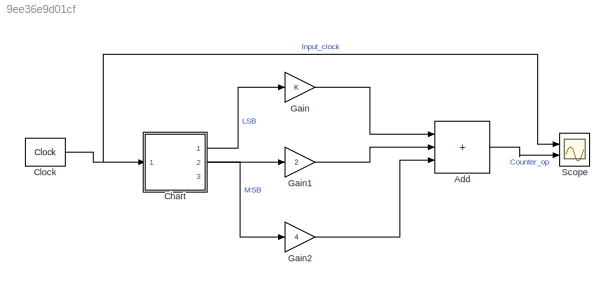
MODEL slx_9ee36e9d01cf
KIND model
CONFIG AbsTol = auto
CONFIG EnableMultiTasking = off
CONFIG FixedStep = auto
CONFIG MaxStep = auto
CONFIG MinStep = auto
CONFIG RelTol = 1e-3
CONFIG SampleTimeConstraint = Unconstrained
CONFIG SolverName = VariableStepAuto
CONFIG StartTime = 0.0
CONFIG StopTime = 24.0
BLOCK [Sum] Add
  IconShape = rectangular
  Inputs = +++
  Ports = [3, 1]
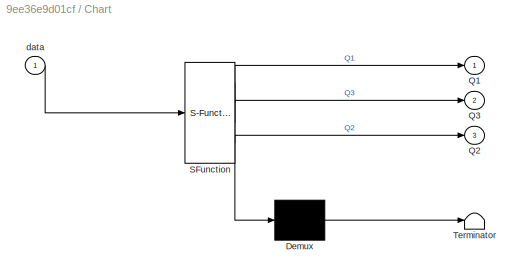
BLOCK [SubSystem] Chart
  ErrorFcn = Stateflow.Translate.translate
  PermitHierarchicalResolution = ExplicitOnly
  PortSchema = {"entries":[{"content":{"sides":[{"content":{"connectorIds":["In1"]},"type":"ConnectorPlacement.EquallySpacedRectSide","uuid":"e3896581-da58-46d2-adac-082a32a1a2e6"},{"content":{"connectorIds":["Out1","Out3","Out2"],"side":"RIGHT"},"type":"ConnectorPlacement.EquallySpacedRectSide","uuid":"2bb7c66e-b19f-4314-acbc-f883db68d0cd"},{"content":{"connectorIds":[],"side":"TOP"},"type":"ConnectorPlacement....<+398ch>
  Ports = [1, 3]
  RequestExecContextInheritance = off
  SFBlockType = Chart
  TreatAsAtomicUnit = on
BLOCK [Demux] Chart/ Demux 
  Outputs = 1
  Ports = [1, 1]
BLOCK [S-Function] Chart/ SFunction 
  EnableBusSupport = on
  FunctionName = sf_sfun
  PortCounts = [1 4]
  Ports = [1, 4]
  SFcnIsStateOwnerBlock = off
  SFunctionDeploymentMode = off
  Tag = Stateflow S-Function 3
BLOCK [Terminator] Chart/ Terminator 
BLOCK [Outport] Chart/Q1
BLOCK [Outport] Chart/Q2
  Port = 3
BLOCK [Outport] Chart/Q3
  Port = 2
BLOCK [Inport] Chart/data
BLOCK [Reference] Clock  REF=simulink_extras/Flip Flops/Clock
  Ports = [0, 1]
  SourceBlock = simulink_extras/Flip Flops/Clock
  SourceProductBaseCode = SL
  SourceType = Digital clock
BLOCK [Gain] Gain
BLOCK [Gain] Gain1
  Gain = 2
BLOCK [Gain] Gain2
  Gain = 4
BLOCK [Scope] Scope
  Floating = off
  NumInputPorts = 2
  Ports = [2]
  ScopeSpecificationString = Simulink.scopes.TimeScopeBlockCfg('CurrentConfiguration', extmgr.ConfigurationSet(extmgr.Configuration('Core','General UI',true),extmgr.Configuration('Core','Source UI',true),extmgr.Configuration('Sources','WiredSimulink',true),extmgr.Configuration('Visuals','Time Domain',true,'SerializedDisplays',{struct('MinYLimReal','-0.125','MaxYLimReal','1.125','YLabelReal','','MinYLimMag','0.00000','MaxYLimM...<+1992ch>
LINE Add:1 -> Scope:2
LINE Chart:1 -> Gain:1
LINE Chart:2 -> Gain2:1
LINE Chart:3 -> Gain1:1
NET Clock:1 -> Chart:1, Scope:1
LINE Gain1:1 -> Add:2
LINE Gain2:1 -> Add:3
LINE Gain:1 -> Add:1
note: NET lines group one-source signal fan-out (src -> all destinations, sorted); 1:1 wires keep LINE
CHART Chart states=12 transitions=13
  STATE_LABEL 'state_0000\nentry:\nQ1=0;\nQ2=0;\nQ3=0;'
  STATE_LABEL 'case_0101\nentry:\nQ1=1;\nQ2=0;\nQ3=1;'
  STATE_LABEL 'case_0000\nentry:\nQ1=0;\nQ2=0;\nQ3=0;'
  STATE_LABEL 'state_0101\nentry:\nQ1=1;\nQ2=0;\nQ3=1;'
  STATE_LABEL 'state_0001\nentry:\nQ1=1;\nQ2=0;\nQ3=0;'
  STATE_LABEL 'case_0100\nentry:\nQ1=0;\nQ2=0;\nQ3=1;'
  STATE_LABEL 'case_0001\nentry:\nQ1=1;\nQ2=0;\nQ3=0;'
  STATE_LABEL 'state_0100\nentry:\nQ1=0;\nQ2=0;\nQ3=1;'
  STATE_LABEL 'state_0010\nentry:\nQ1=0;\nQ2=1;\nQ3=0;'
  STATE_LABEL 'case_0011\nentry:\nQ1=1;\nQ2=1;\nQ3=0;'
  STATE_LABEL 'case_0010\nentry:\nQ1=0;\nQ2=1;\nQ3=0;'
  STATE_LABEL 'state_0011\nentry:\nQ1=1;\nQ2=1;\nQ3=0;'
CHART  states=0 transitions=0
